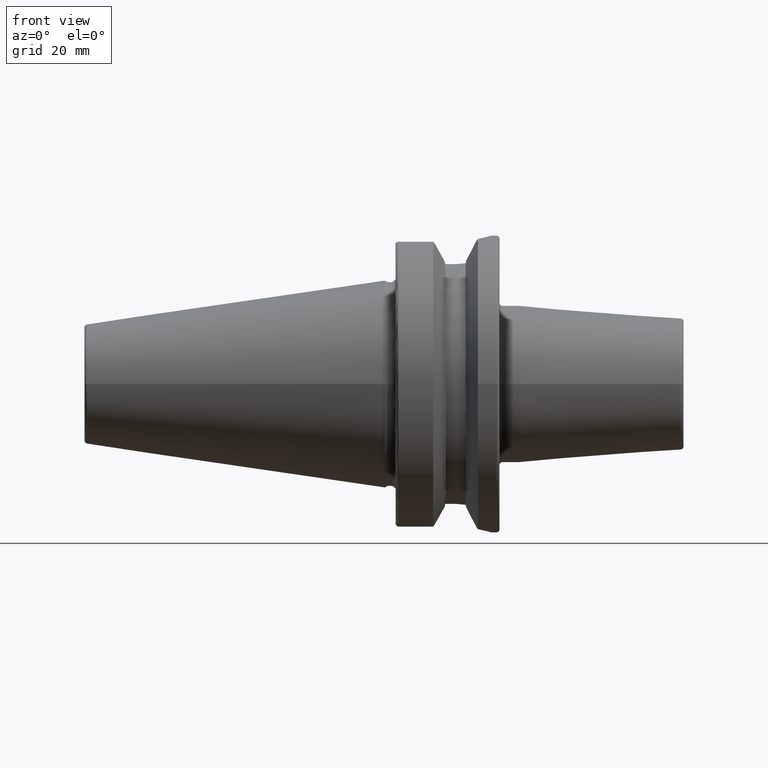
[diagram: clean part render]
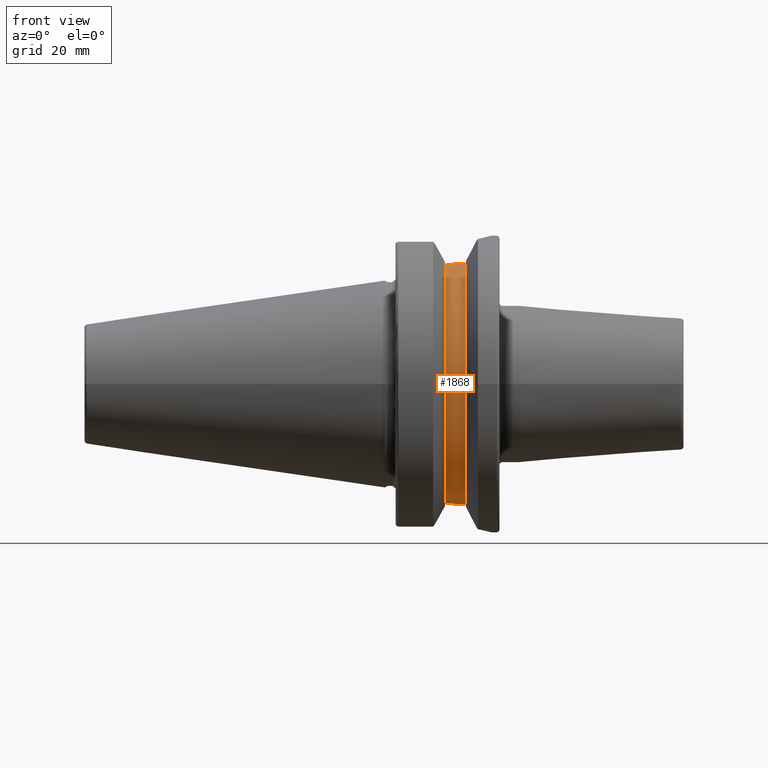
[diagram: same view with one face highlighted and labeled with its STEP entity id]
A machine part, front view. The second image highlights one B-rep face of the part: STEP entity #1868.
In plain terms, the highlighted cylindrical surface (partial cylindrical patch) has radius 42.375 mm, axis along (1, 0, 0).
Its self-contained STEP definition (entity closure, byte-faithful):
#308=DIRECTION('',(1.E0,0.E0,0.E0));
#309=VECTOR('',#308,1.435E0);
#310=CARTESIAN_POINT('',(1.99125E1,-1.29025E1,-4.036293000700E1));
#311=LINE('',#310,#309);
#368=CARTESIAN_POINT('',(2.64875E1,-1.183447955129E1,-4.068888937720E1));
#369=CARTESIAN_POINT('',(2.593767013313E1,-1.207328392824E1,-4.061943244291E1));
#370=CARTESIAN_POINT('',(2.482251458205E1,-1.246756636174E1,-4.050035379603E1));
#371=CARTESIAN_POINT('',(2.309259987910E1,-1.282394305606E1,-4.038817378858E1));
#372=CARTESIAN_POINT('',(2.193211835188E1,-1.29025E1,-4.036293000700E1));
#373=CARTESIAN_POINT('',(2.13475E1,-1.29025E1,-4.036293000700E1));
#375=CARTESIAN_POINT('',(1.99125E1,0.E0,0.E0));
#376=DIRECTION('',(-1.E0,0.E0,0.E0));
#377=DIRECTION('',(0.E0,-3.044837758112E-1,-9.525175222891E-1));
#378=AXIS2_PLACEMENT_3D('',#375,#376,#377);
#380=CARTESIAN_POINT('',(2.13475E1,-1.29025E1,4.036293000700E1));
#381=CARTESIAN_POINT('',(2.193211835188E1,-1.29025E1,4.036293000700E1));
#382=CARTESIAN_POINT('',(2.309259987910E1,-1.282394305606E1,4.038817378858E1));
#383=CARTESIAN_POINT('',(2.482251458205E1,-1.246756636174E1,4.050035379603E1));
#384=CARTESIAN_POINT('',(2.593767013313E1,-1.207328392824E1,4.061943244291E1));
#385=CARTESIAN_POINT('',(2.64875E1,-1.183447955129E1,4.068888937720E1));
#463=CARTESIAN_POINT('',(2.64875E1,0.E0,0.E0));
#464=DIRECTION('',(-1.E0,0.E0,0.E0));
#465=DIRECTION('',(0.E0,-2.792797534229E-1,-9.602097788130E-1));
#466=AXIS2_PLACEMENT_3D('',#463,#464,#465);
#548=DIRECTION('',(1.E0,0.E0,0.E0));
#549=VECTOR('',#548,1.435E0);
#550=CARTESIAN_POINT('',(1.99125E1,-1.29025E1,4.036293000700E1));
#551=LINE('',#550,#549);
#1184=CARTESIAN_POINT('',(1.99125E1,-1.29025E1,-4.036293000700E1));
#1185=CARTESIAN_POINT('',(1.99125E1,-1.29025E1,4.036293000700E1));
#1186=VERTEX_POINT('',#1184);
#1187=VERTEX_POINT('',#1185);
#1196=CARTESIAN_POINT('',(2.64875E1,-1.183447955129E1,-4.068888937720E1));
#1197=CARTESIAN_POINT('',(2.64875E1,-1.183447955129E1,4.068888937720E1));
#1198=VERTEX_POINT('',#1196);
#1199=VERTEX_POINT('',#1197);
#1325=CARTESIAN_POINT('',(2.13475E1,-1.29025E1,4.036293000700E1));
#1326=VERTEX_POINT('',#1325);
#1333=CARTESIAN_POINT('',(2.13475E1,-1.29025E1,-4.036293000700E1));
#1334=VERTEX_POINT('',#1333);
#1851=CARTESIAN_POINT('',(1.491626494021E1,0.E0,0.E0));
#1852=DIRECTION('',(1.E0,0.E0,0.E0));
#1853=DIRECTION('',(0.E0,-1.E0,0.E0));
#1854=AXIS2_PLACEMENT_3D('',#1851,#1852,#1853);
#1855=CYLINDRICAL_SURFACE('',#1854,4.2375E1);
#1857=ORIENTED_EDGE('',*,*,#1856,.T.);
#1858=ORIENTED_EDGE('',*,*,#1790,.F.);
#1859=ORIENTED_EDGE('',*,*,#1824,.T.);
#1861=ORIENTED_EDGE('',*,*,#1860,.T.);
#1863=ORIENTED_EDGE('',*,*,#1862,.T.);
#1865=ORIENTED_EDGE('',*,*,#1864,.F.);
#1866=EDGE_LOOP('',(#1857,#1858,#1859,#1861,#1863,#1865));
#1867=FACE_OUTER_BOUND('',#1866,.F.);
#1868=ADVANCED_FACE('',(#1867),#1855,.T.);
#374=B_SPLINE_CURVE_WITH_KNOTS('',3,(#368,#369,#370,#371,#372,#373),
.UNSPECIFIED.,.F.,.F.,(4,1,1,4),(0.E0,3.333333333333E-1,6.666666666667E-1,1.E0),
.UNSPECIFIED.);
#379=CIRCLE('',#378,4.2375E1);
#386=B_SPLINE_CURVE_WITH_KNOTS('',3,(#380,#381,#382,#383,#384,#385),
.UNSPECIFIED.,.F.,.F.,(4,1,1,4),(0.E0,3.333333333333E-1,6.666666666667E-1,1.E0),
.UNSPECIFIED.);
#467=CIRCLE('',#466,4.2375E1);
#1790=EDGE_CURVE('',#1186,#1334,#311,.T.);
#1824=EDGE_CURVE('',#1186,#1187,#379,.T.);
#1856=EDGE_CURVE('',#1198,#1334,#374,.T.);
#1860=EDGE_CURVE('',#1187,#1326,#551,.T.);
#1862=EDGE_CURVE('',#1326,#1199,#386,.T.);
#1864=EDGE_CURVE('',#1198,#1199,#467,.T.);